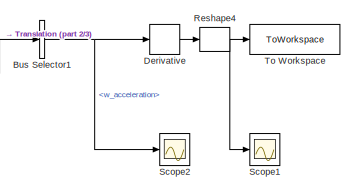
[diagram: root canvas - part 1/3, top right region]
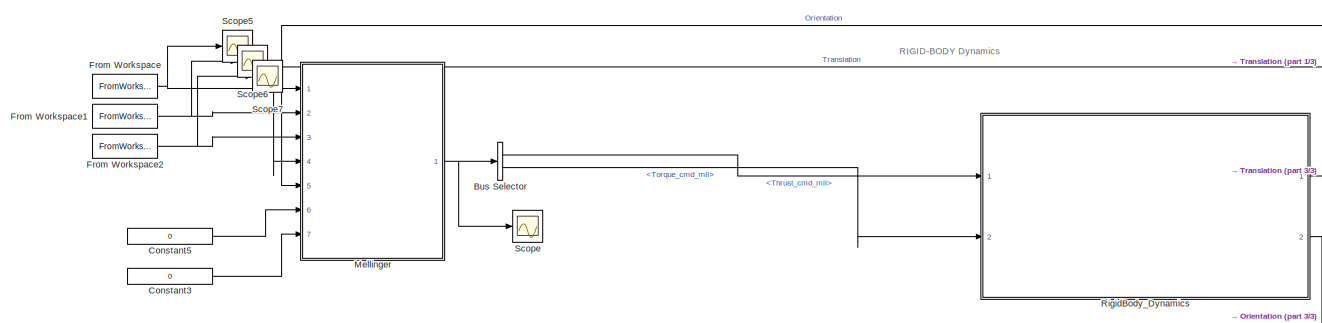
[diagram: root canvas - part 2/3, full width, middle band]
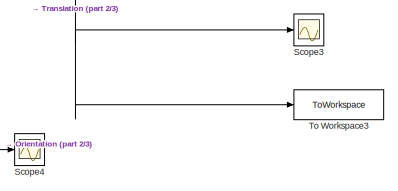
[diagram: root canvas - part 3/3, bottom right region]
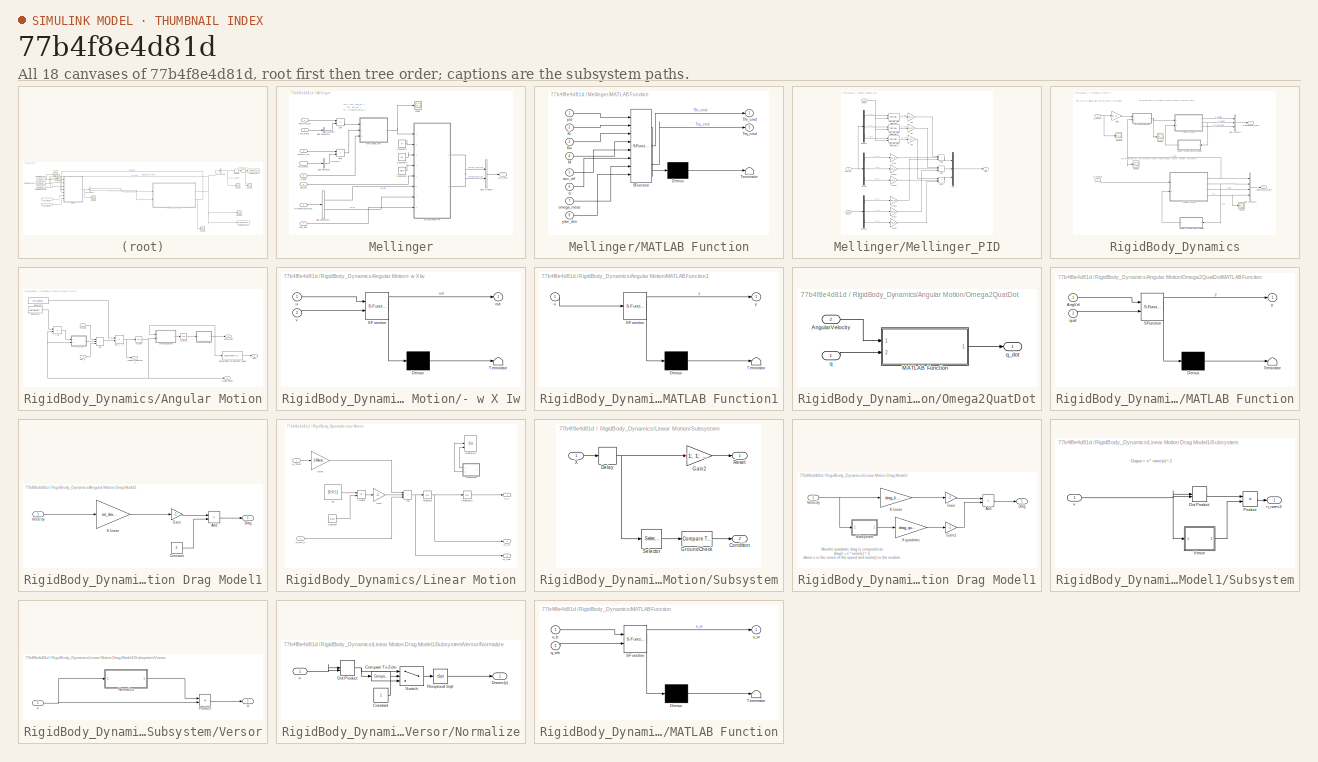
[diagram: thumbnail index - all 18 canvases of the model, root first then tree order]
MODEL slx_77b4f8e4d81d
KIND model
CONFIG AbsTol = auto
CONFIG EnableMultiTasking = off
CONFIG FixedStep = 0.001
CONFIG MaxStep = auto
CONFIG MinStep = auto
CONFIG RelTol = 1e-3
CONFIG SampleTimeConstraint = Unconstrained
CONFIG SolverName = FixedStepAuto
CONFIG StartTime = 0.0
CONFIG StopTime = 10.0
BLOCK [BusSelector] Bus Selector
  OutputSignals = Thrust_cmd_mll,Torque_cmd_mll
  Ports = [1, 2]
BLOCK [BusSelector] Bus Selector1
  OutputSignals = w_acceleration
  Ports = [1, 1]
BLOCK [Constant] Constant3
  Value = 0
BLOCK [Constant] Constant5
  Value = 0
BLOCK [Derivative] Derivative
BLOCK [FromWorkspace] From Workspace
  VariableName = polys
BLOCK [FromWorkspace] From Workspace1
  VariableName = polys_v
BLOCK [FromWorkspace] From Workspace2
  VariableName = polys_a
BLOCK [SubSystem] Mellinger
  Ports = [7, 1]
  RequestExecContextInheritance = off
  SystemSampleTime = Mellinger_dt
  TreatAsAtomicUnit = on
BLOCK [Outport] Mellinger/Act_Cmd
BLOCK [Sum] Mellinger/Add
  IconShape = rectangular
  Inputs = +-
  Ports = [2, 1]
BLOCK [Sum] Mellinger/Add1
  IconShape = rectangular
  Inputs = +-
  Ports = [2, 1]
BLOCK [BusCreator] Mellinger/Bus Creator
  DisplayOption = bar
  InheritFromInputs = on
  Inputs = 2
  Ports = [2, 1]
BLOCK [BusSelector] Mellinger/Bus Selector
  OutputSignals = w_velocity
  Ports = [1, 1]
BLOCK [BusSelector] Mellinger/Bus Selector1
  OutputSignals = w_position
  Ports = [1, 1]
BLOCK [BusSelector] Mellinger/Bus Selector2
  OutputSignals = q_wb,b_w
  Ports = [1, 2]
BLOCK [Constant] Mellinger/Constant2
  Value = Mass
BLOCK [Constant] Mellinger/Constant3
  Value = Kr
BLOCK [Constant] Mellinger/Constant4
  Value = Kw
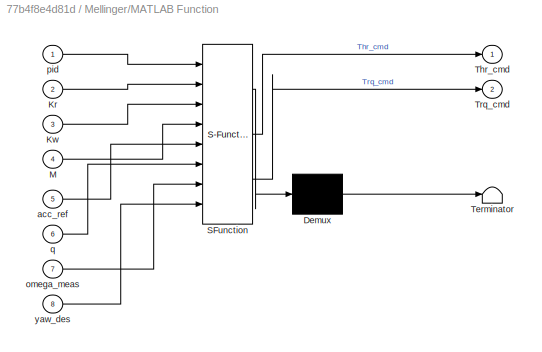
BLOCK [SubSystem] Mellinger/MATLAB Function
  ErrorFcn = Stateflow.Translate.translate
  PermitHierarchicalResolution = ExplicitOnly
  Ports = [8, 2]
  RequestExecContextInheritance = off
  SFBlockType = MATLAB Function
  SystemSampleTime = Mellinger_dt
  TreatAsAtomicUnit = on
BLOCK [Demux] Mellinger/MATLAB Function/ Demux 
  Outputs = 1
  Ports = [1, 1]
BLOCK [S-Function] Mellinger/MATLAB Function/ SFunction 
  EnableBusSupport = on
  FunctionName = sf_sfun
  PortCounts = [8 3]
  Ports = [8, 3]
  SFcnIsStateOwnerBlock = off
  SFunctionDeploymentMode = off
  Tag = Stateflow S-Function 1
BLOCK [Terminator] Mellinger/MATLAB Function/ Terminator 
BLOCK [Inport] Mellinger/MATLAB Function/Kr
  Port = 2
BLOCK [Inport] Mellinger/MATLAB Function/Kw
  Port = 3
BLOCK [Inport] Mellinger/MATLAB Function/M
  Port = 4
BLOCK [Outport] Mellinger/MATLAB Function/Thr_cmd
BLOCK [Outport] Mellinger/MATLAB Function/Trq_cmd
  Port = 2
BLOCK [Inport] Mellinger/MATLAB Function/acc_ref
  Port = 5
BLOCK [Inport] Mellinger/MATLAB Function/omega_meas
  Port = 7
BLOCK [Inport] Mellinger/MATLAB Function/pid
BLOCK [Inport] Mellinger/MATLAB Function/q
  Port = 6
BLOCK [Inport] Mellinger/MATLAB Function/yaw_des
  Port = 8
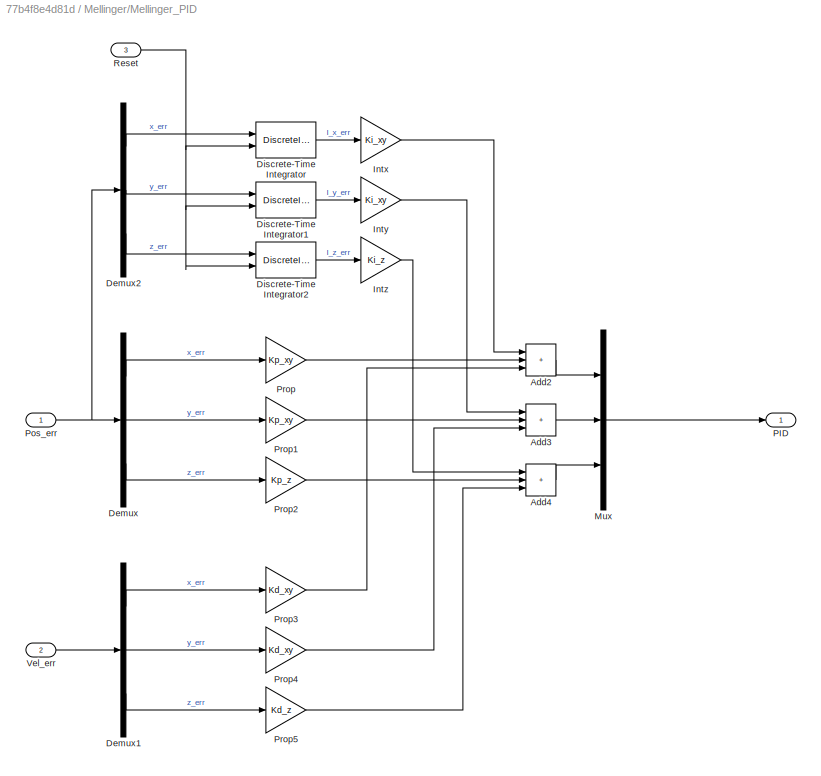
BLOCK [SubSystem] Mellinger/Mellinger_PID
  Ports = [3, 1]
  RequestExecContextInheritance = off
BLOCK [Sum] Mellinger/Mellinger_PID/Add2
  IconShape = rectangular
  Inputs = +++
  Ports = [3, 1]
BLOCK [Sum] Mellinger/Mellinger_PID/Add3
  IconShape = rectangular
  Inputs = +++
  Ports = [3, 1]
BLOCK [Sum] Mellinger/Mellinger_PID/Add4
  IconShape = rectangular
  Inputs = +++
  Ports = [3, 1]
BLOCK [Demux] Mellinger/Mellinger_PID/Demux
  Outputs = 3
  Ports = [1, 3]
BLOCK [Demux] Mellinger/Mellinger_PID/Demux1
  Outputs = 3
  Ports = [1, 3]
BLOCK [Demux] Mellinger/Mellinger_PID/Demux2
  Outputs = 3
  Ports = [1, 3]
BLOCK [DiscreteIntegrator] Mellinger/Mellinger_PID/Discrete-Time Integrator
  ExternalReset = rising
  ICPrevOutput = DiscIntNeverNeededParam
  ICPrevScaledInput = DiscIntNeverNeededParam
  InitialConditionSetting = Auto
  LimitOutput = on
  LowerSaturationLimit = -Irange_xy
  Ports = [2, 1]
  SampleTime = -1
  UpperSaturationLimit = Irange_xy
BLOCK [DiscreteIntegrator] Mellinger/Mellinger_PID/Discrete-Time Integrator1
  ExternalReset = rising
  ICPrevOutput = DiscIntNeverNeededParam
  ICPrevScaledInput = DiscIntNeverNeededParam
  InitialConditionSetting = Auto
  LimitOutput = on
  LowerSaturationLimit = -Irange_xy
  Ports = [2, 1]
  SampleTime = -1
  UpperSaturationLimit = Irange_xy
BLOCK [DiscreteIntegrator] Mellinger/Mellinger_PID/Discrete-Time Integrator2
  ExternalReset = rising
  ICPrevOutput = DiscIntNeverNeededParam
  ICPrevScaledInput = DiscIntNeverNeededParam
  InitialConditionSetting = Auto
  LimitOutput = on
  LowerSaturationLimit = -Irange_z
  Ports = [2, 1]
  SampleTime = -1
  UpperSaturationLimit = Irange_z
BLOCK [Gain] Mellinger/Mellinger_PID/Intx
  Gain = Ki_xy
  NameLocation = top
BLOCK [Gain] Mellinger/Mellinger_PID/Inty
  Gain = Ki_xy
  NameLocation = top
BLOCK [Gain] Mellinger/Mellinger_PID/Intz
  Gain = Ki_z
BLOCK [Mux] Mellinger/Mellinger_PID/Mux
  DisplayOption = bar
  Inputs = 3
  Ports = [3, 1]
BLOCK [Outport] Mellinger/Mellinger_PID/PID
BLOCK [Inport] Mellinger/Mellinger_PID/Pos_err
BLOCK [Gain] Mellinger/Mellinger_PID/Prop
  Gain = Kp_xy
  NameLocation = top
BLOCK [Gain] Mellinger/Mellinger_PID/Prop1
  Gain = Kp_xy
  NameLocation = top
BLOCK [Gain] Mellinger/Mellinger_PID/Prop2
  Gain = Kp_z
BLOCK [Gain] Mellinger/Mellinger_PID/Prop3
  Gain = Kd_xy
  NameLocation = top
BLOCK [Gain] Mellinger/Mellinger_PID/Prop4
  Gain = Kd_xy
  NameLocation = top
BLOCK [Gain] Mellinger/Mellinger_PID/Prop5
  Gain = Kd_z
BLOCK [Inport] Mellinger/Mellinger_PID/Reset
  Port = 3
BLOCK [Inport] Mellinger/Mellinger_PID/Vel_err
  Port = 2
BLOCK [Inport] Mellinger/Orientation_state
  Port = 5
BLOCK [Inport] Mellinger/Position_ref
BLOCK [Inport] Mellinger/Reset
  Port = 6
BLOCK [Scope] Mellinger/Scope
  Floating = off
  NumInputPorts = 1
  Ports = [1]
  ScopeSpecificationString = Simulink.scopes.TimeScopeBlockCfg('CurrentConfiguration', extmgr.ConfigurationSet(extmgr.Configuration('Core','General UI',true),extmgr.Configuration('Core','Source UI',true),extmgr.Configuration('Sources','WiredSimulink',true,'DataLoggingVariableName','ScopeData1'),extmgr.Configuration('Visuals','Time Domain',true,'SerializedDisplays',{struct('MinYLimReal','-0.000039','MaxYLimReal','0.000037','YL...<+1418ch>
BLOCK [Inport] Mellinger/Velocity_ref
  Port = 2
BLOCK [Inport] Mellinger/XVA_state
  Port = 4
BLOCK [InportShadow] Mellinger/XVA_state1
  Port = 4
BLOCK [Inport] Mellinger/acc_ref
  Port = 3
BLOCK [Inport] Mellinger/yaw_des
  Port = 7
BLOCK [Reshape] Reshape4
  Ports = [1, 1]
BLOCK [SubSystem] RigidBody_Dynamics
  Ports = [2, 2]
  RequestExecContextInheritance = off
BLOCK [SubSystem] RigidBody_Dynamics/Angular Motion
  Ports = [2, 4]
  RequestExecContextInheritance = off
BLOCK [SubSystem] RigidBody_Dynamics/Angular Motion Drag Model1
  NameLocation = top
  Ports = [1, 1]
  RequestExecContextInheritance = off
BLOCK [Sum] RigidBody_Dynamics/Angular Motion Drag Model1/Add
  IconShape = rectangular
  Ports = [2, 1]
BLOCK [Constant] RigidBody_Dynamics/Angular Motion Drag Model1/Constant
  Value = 0
BLOCK [Outport] RigidBody_Dynamics/Angular Motion Drag Model1/Drag
BLOCK [Gain] RigidBody_Dynamics/Angular Motion Drag Model1/Gain
  Gain = -1
BLOCK [Gain] RigidBody_Dynamics/Angular Motion Drag Model1/K linear
  Gain = rot_drag_linear
BLOCK [Inport] RigidBody_Dynamics/Angular Motion Drag Model1/Velocity
BLOCK [SubSystem] RigidBody_Dynamics/Angular Motion/- w X Iw
  ErrorFcn = Stateflow.Translate.translate
  PermitHierarchicalResolution = ExplicitOnly
  Ports = [2, 1]
  RequestExecContextInheritance = off
  SFBlockType = MATLAB Function
  TreatAsAtomicUnit = on
BLOCK [Demux] RigidBody_Dynamics/Angular Motion/- w X Iw/ Demux 
  Outputs = 1
  Ports = [1, 1]
BLOCK [S-Function] RigidBody_Dynamics/Angular Motion/- w X Iw/ SFunction 
  EnableBusSupport = on
  FunctionName = sf_sfun
  PortCounts = [2 2]
  Ports = [2, 2]
  SFcnIsStateOwnerBlock = off
  SFunctionDeploymentMode = off
  Tag = Stateflow S-Function 3
BLOCK [Terminator] RigidBody_Dynamics/Angular Motion/- w X Iw/ Terminator 
BLOCK [Outport] RigidBody_Dynamics/Angular Motion/- w X Iw/out
BLOCK [Inport] RigidBody_Dynamics/Angular Motion/- w X Iw/u
BLOCK [Inport] RigidBody_Dynamics/Angular Motion/- w X Iw/v
  Port = 2
BLOCK [Integrator] RigidBody_Dynamics/Angular Motion/Acc2Vel
  InitialCondition = InitialAngularVelocity
  Ports = [1, 1]
BLOCK [Sum] RigidBody_Dynamics/Angular Motion/Add
  IconShape = rectangular
  Inputs = +++
  Ports = [3, 1]
BLOCK [Outport] RigidBody_Dynamics/Angular Motion/AngularAcceleration
  Port = 3
BLOCK [Outport] RigidBody_Dynamics/Angular Motion/AngularVelocity
  Port = 2
BLOCK [Constant] RigidBody_Dynamics/Angular Motion/Constant1
  Value = InertiaMatrix
BLOCK [Constant] RigidBody_Dynamics/Angular Motion/Constant2
  Value = Inv_InertiaMatrix
BLOCK [Inport] RigidBody_Dynamics/Angular Motion/Ext_T
  Port = 2
BLOCK [Product] RigidBody_Dynamics/Angular Motion/I w
  Multiplication = Matrix(*)
  Ports = [2, 1]
BLOCK [SubSystem] RigidBody_Dynamics/Angular Motion/MATLAB Function1
  ErrorFcn = Stateflow.Translate.translate
  PermitHierarchicalResolution = ExplicitOnly
  Ports = [1, 1]
  RequestExecContextInheritance = off
  SFBlockType = MATLAB Function
  TreatAsAtomicUnit = on
BLOCK [Demux] RigidBody_Dynamics/Angular Motion/MATLAB Function1/ Demux 
  Outputs = 1
  Ports = [1, 1]
BLOCK [S-Function] RigidBody_Dynamics/Angular Motion/MATLAB Function1/ SFunction 
  EnableBusSupport = on
  FunctionName = sf_sfun
  PortCounts = [1 2]
  Ports = [1, 2]
  SFcnIsStateOwnerBlock = off
  SFunctionDeploymentMode = off
  Tag = Stateflow S-Function 9
BLOCK [Terminator] RigidBody_Dynamics/Angular Motion/MATLAB Function1/ Terminator 
BLOCK [Inport] RigidBody_Dynamics/Angular Motion/MATLAB Function1/u
BLOCK [Outport] RigidBody_Dynamics/Angular Motion/MATLAB Function1/y
BLOCK [SubSystem] RigidBody_Dynamics/Angular Motion/Omega2QuatDot
  Ports = [2, 1]
  RequestExecContextInheritance = off
BLOCK [Inport] RigidBody_Dynamics/Angular Motion/Omega2QuatDot/AngularVelocity
  Port = 2
BLOCK [SubSystem] RigidBody_Dynamics/Angular Motion/Omega2QuatDot/MATLAB Function
  ErrorFcn = Stateflow.Translate.translate
  PermitHierarchicalResolution = ExplicitOnly
  Ports = [2, 1]
  RequestExecContextInheritance = off
  SFBlockType = MATLAB Function
  TreatAsAtomicUnit = on
BLOCK [Demux] RigidBody_Dynamics/Angular Motion/Omega2QuatDot/MATLAB Function/ Demux 
  Outputs = 1
  Ports = [1, 1]
BLOCK [S-Function] RigidBody_Dynamics/Angular Motion/Omega2QuatDot/MATLAB Function/ SFunction 
  EnableBusSupport = on
  FunctionName = sf_sfun
  PortCounts = [2 2]
  Ports = [2, 2]
  SFcnIsStateOwnerBlock = off
  SFunctionDeploymentMode = off
  Tag = Stateflow S-Function 5
BLOCK [Terminator] RigidBody_Dynamics/Angular Motion/Omega2QuatDot/MATLAB Function/ Terminator 
BLOCK [Inport] RigidBody_Dynamics/Angular Motion/Omega2QuatDot/MATLAB Function/AngVel
BLOCK [Inport] RigidBody_Dynamics/Angular Motion/Omega2QuatDot/MATLAB Function/quat
  Port = 2
BLOCK [Outport] RigidBody_Dynamics/Angular Motion/Omega2QuatDot/MATLAB Function/y
BLOCK [Inport] RigidBody_Dynamics/Angular Motion/Omega2QuatDot/q
BLOCK [Outport] RigidBody_Dynamics/Angular Motion/Omega2QuatDot/q_dot
BLOCK [Outport] RigidBody_Dynamics/Angular Motion/Quaternion
BLOCK [Reference] RigidBody_Dynamics/Angular Motion/Quaternions to Rotation Angles  REF=sharedtransform/Quaternions to Rotation Angles
  AttributesFormatString = Rotation Order: %<rotationOrder>
  Ports = [1, 1]
  SourceBlock = sharedtransform/Quaternions to Rotation Angles
  SourceProductBaseCode = AE,PW,MT,UV,VE,VP
  SourceType = Quat2Ang
BLOCK [Outport] RigidBody_Dynamics/Angular Motion/RPY
  Port = 4
BLOCK [Inport] RigidBody_Dynamics/Angular Motion/Torques
BLOCK [Product] RigidBody_Dynamics/Angular Motion/inv(I) * t
  Multiplication = Matrix(*)
  Ports = [2, 1]
BLOCK [Integrator] RigidBody_Dynamics/Angular Motion/q_dot2q
  InitialCondition = q0
  Ports = [1, 1]
BLOCK [BusCreator] RigidBody_Dynamics/Bus Creator4
  DisplayOption = bar
  InheritFromInputs = on
  Inputs = 3
  Ports = [3, 1]
BLOCK [BusCreator] RigidBody_Dynamics/Bus Creator5
  DisplayOption = bar
  InheritFromInputs = on
  Inputs = 4
  Ports = [4, 1]
BLOCK [Gain] RigidBody_Dynamics/Gain
  Gain = [0; 0; 1]
BLOCK [SubSystem] RigidBody_Dynamics/Linear Motion
  Ports = [2, 3]
  RequestExecContextInheritance = off
BLOCK [SubSystem] RigidBody_Dynamics/Linear Motion Drag Model1
  NameLocation = top
  Ports = [1, 1]
  RequestExecContextInheritance = off
BLOCK [Sum] RigidBody_Dynamics/Linear Motion Drag Model1/Add
  IconShape = rectangular
  Ports = [2, 1]
BLOCK [Outport] RigidBody_Dynamics/Linear Motion Drag Model1/Drag
BLOCK [Gain] RigidBody_Dynamics/Linear Motion Drag Model1/Gain
  Gain = -1
BLOCK [Gain] RigidBody_Dynamics/Linear Motion Drag Model1/Gain1
  Gain = -1
BLOCK [Gain] RigidBody_Dynamics/Linear Motion Drag Model1/K linear
  Gain = drag_linear
BLOCK [Gain] RigidBody_Dynamics/Linear Motion Drag Model1/K quadratic
  Gain = drag_quadratic
BLOCK [SubSystem] RigidBody_Dynamics/Linear Motion Drag Model1/Subsystem
  Ports = [1, 1]
  RequestExecContextInheritance = off
BLOCK [DotProduct] RigidBody_Dynamics/Linear Motion Drag Model1/Subsystem/Dot Product
  OutDataTypeStr = Inherit: Inherit via internal rule
BLOCK [Product] RigidBody_Dynamics/Linear Motion Drag Model1/Subsystem/Product
  Ports = [2, 1]
BLOCK [SubSystem] RigidBody_Dynamics/Linear Motion Drag Model1/Subsystem/Versor
  Ports = [1, 1]
  RequestExecContextInheritance = off
BLOCK [SubSystem] RigidBody_Dynamics/Linear Motion Drag Model1/Subsystem/Versor/Normalize
  Ports = [1, 1]
  RequestExecContextInheritance = off
BLOCK [Outport] RigidBody_Dynamics/Linear Motion Drag Model1/Subsystem/Versor/Normalize/1//norm(v)
BLOCK [Reference] RigidBody_Dynamics/Linear Motion Drag Model1/Subsystem/Versor/Normalize/Compare To Zero  REF=simulink/Logic and Bit
Operations/Compare
To Zero
  Ports = [1, 1]
  SourceBlock = simulink/Logic and Bit\nOperations/Compare\nTo Zero
  SourceProductBaseCode = SL
  SourceType = Compare To Zero
BLOCK [Constant] RigidBody_Dynamics/Linear Motion Drag Model1/Subsystem/Versor/Normalize/Constant
BLOCK [DotProduct] RigidBody_Dynamics/Linear Motion Drag Model1/Subsystem/Versor/Normalize/Dot Product
  OutDataTypeStr = Inherit: Inherit via internal rule
BLOCK [Sqrt] RigidBody_Dynamics/Linear Motion Drag Model1/Subsystem/Versor/Normalize/Reciprocal Sqrt
  Operator = rSqrt
BLOCK [Switch] RigidBody_Dynamics/Linear Motion Drag Model1/Subsystem/Versor/Normalize/Switch
  Criteria = u2 > Threshold
  InputSameDT = off
  SaturateOnIntegerOverflow = off
BLOCK [Inport] RigidBody_Dynamics/Linear Motion Drag Model1/Subsystem/Versor/Normalize/v
BLOCK [Product] RigidBody_Dynamics/Linear Motion Drag Model1/Subsystem/Versor/Product
  Ports = [2, 1]
BLOCK [Outport] RigidBody_Dynamics/Linear Motion Drag Model1/Subsystem/Versor/n
BLOCK [Inport] RigidBody_Dynamics/Linear Motion Drag Model1/Subsystem/Versor/v
BLOCK [Outport] RigidBody_Dynamics/Linear Motion Drag Model1/Subsystem/n_norm2
BLOCK [Inport] RigidBody_Dynamics/Linear Motion Drag Model1/Subsystem/v
BLOCK [Inport] RigidBody_Dynamics/Linear Motion Drag Model1/Velocity
BLOCK [Sum] RigidBody_Dynamics/Linear Motion/Add
  IconShape = rectangular
  Inputs = +++
  Ports = [3, 1]
BLOCK [Constant] RigidBody_Dynamics/Linear Motion/Constant
  Value = G_acc
BLOCK [Gain] RigidBody_Dynamics/Linear Motion/Gain
  Gain = -1
BLOCK [Gain] RigidBody_Dynamics/Linear Motion/Gain1
  Gain = 1/Mass
BLOCK [Integrator] RigidBody_Dynamics/Linear Motion/Integrator
  ContinuousStateAttributes = 'velocity'
  InitialCondition = InitialVelocity
  Ports = [1, 1]
BLOCK [Integrator] RigidBody_Dynamics/Linear Motion/Integrator1
  Commented = on
  ContinuousStateAttributes = 'position'
  ExternalReset = level
  InitialCondition = InitialPosition
  InitialConditionSource = external
  Ports = [3, 1]
BLOCK [Integrator] RigidBody_Dynamics/Linear Motion/Integrator2
  ContinuousStateAttributes = 'position'
  InitialCondition = InitialPosition
  Ports = [1, 1]
BLOCK [Product] RigidBody_Dynamics/Linear Motion/Product
  Ports = [2, 1]
BLOCK [SubSystem] RigidBody_Dynamics/Linear Motion/Subsystem
  Commented = on
  NameLocation = top
  Ports = [1, 2]
  RequestExecContextInheritance = off
BLOCK [Outport] RigidBody_Dynamics/Linear Motion/Subsystem/Condition
  Port = 2
BLOCK [Delay] RigidBody_Dynamics/Linear Motion/Subsystem/Delay
  DelayLength = 1
  InitialCondition = 0
  InputPortMap = u0
  Ports = [1, 1]
BLOCK [Gain] RigidBody_Dynamics/Linear Motion/Subsystem/Gain2
  Gain = [1; 1; 0]
BLOCK [Reference] RigidBody_Dynamics/Linear Motion/Subsystem/GroundCheck  REF=simulink/Logic and Bit
Operations/Compare
To Constant
  Ports = [1, 1]
  SourceBlock = simulink/Logic and Bit\nOperations/Compare\nTo Constant
  SourceProductBaseCode = SL
  SourceType = Compare To Constant
BLOCK [Outport] RigidBody_Dynamics/Linear Motion/Subsystem/Reset
BLOCK [Selector] RigidBody_Dynamics/Linear Motion/Subsystem/Selector
  IndexOptions = Index vector (dialog)
  Indices = [3]
  InputPortWidth = 3
  OutputSizes = 1
  Ports = [1, 1]
BLOCK [Inport] RigidBody_Dynamics/Linear Motion/Subsystem/X
BLOCK [Constant] RigidBody_Dynamics/Linear Motion/Zw
  Value = [0;0;1]
BLOCK [Inport] RigidBody_Dynamics/Linear Motion/w_Ext_F
  Port = 2
BLOCK [Inport] RigidBody_Dynamics/Linear Motion/w_Thrust
BLOCK [Outport] RigidBody_Dynamics/Linear Motion/w_X
BLOCK [Outport] RigidBody_Dynamics/Linear Motion/w_Xd
  Port = 2
BLOCK [Outport] RigidBody_Dynamics/Linear Motion/w_Xdd
  Port = 3
BLOCK [SubSystem] RigidBody_Dynamics/MATLAB Function
  ErrorFcn = Stateflow.Translate.translate
  PermitHierarchicalResolution = ExplicitOnly
  Ports = [2, 1]
  RequestExecContextInheritance = off
  SFBlockType = MATLAB Function
  TreatAsAtomicUnit = on
BLOCK [Demux] RigidBody_Dynamics/MATLAB Function/ Demux 
  Outputs = 1
  Ports = [1, 1]
BLOCK [S-Function] RigidBody_Dynamics/MATLAB Function/ SFunction 
  EnableBusSupport = on
  FunctionName = sf_sfun
  PortCounts = [2 2]
  Ports = [2, 2]
  SFcnIsStateOwnerBlock = off
  SFunctionDeploymentMode = off
  Tag = Stateflow S-Function 10
BLOCK [Terminator] RigidBody_Dynamics/MATLAB Function/ Terminator 
BLOCK [Inport] RigidBody_Dynamics/MATLAB Function/q_wb
  Port = 2
BLOCK [Inport] RigidBody_Dynamics/MATLAB Function/u_b
BLOCK [Outport] RigidBody_Dynamics/MATLAB Function/u_w
BLOCK [Outport] RigidBody_Dynamics/Orientation_State
  Port = 2
BLOCK [Scope] RigidBody_Dynamics/Scope
  Floating = off
  NumInputPorts = 1
  Ports = [1]
  ScopeSpecificationString = Simulink.scopes.TimeScopeBlockCfg('CurrentConfiguration', extmgr.ConfigurationSet(extmgr.Configuration('Core','General UI',true),extmgr.Configuration('Core','Source UI',true),extmgr.Configuration('Sources','WiredSimulink',true,'DataLoggingVariableName','ScopeData4'),extmgr.Configuration('Visuals','Time Domain',true,'SerializedDisplays',{struct('MinYLimReal','-0.02945','MaxYLimReal','0.02945','YLab...<+1742ch>
BLOCK [Scope] RigidBody_Dynamics/Scope1
  Floating = off
  NumInputPorts = 1
  Ports = [1]
  ScopeSpecificationString = Simulink.scopes.TimeScopeBlockCfg('CurrentConfiguration', extmgr.ConfigurationSet(extmgr.Configuration('Core','General UI',true),extmgr.Configuration('Core','Source UI',true),extmgr.Configuration('Sources','WiredSimulink',true,'DataLoggingVariableName','ScopeData6'),extmgr.Configuration('Visuals','Time Domain',true,'SerializedDisplays',{struct('MinYLimReal','-0.04324','MaxYLimReal','0.38919','YLab...<+1763ch>
BLOCK [Scope] RigidBody_Dynamics/Scope2
  Floating = off
  NumInputPorts = 1
  Ports = [1]
  ScopeSpecificationString = Simulink.scopes.TimeScopeBlockCfg('CurrentConfiguration', extmgr.ConfigurationSet(extmgr.Configuration('Core','General UI',true),extmgr.Configuration('Core','Source UI',true),extmgr.Configuration('Sources','WiredSimulink',true,'DataLoggingVariableName','ScopeData7'),extmgr.Configuration('Visuals','Time Domain',true,'SerializedDisplays',{struct('MinYLimReal','-0.16948','MaxYLimReal','1.12853','YLab...<+1768ch>
BLOCK [Scope] RigidBody_Dynamics/Scope3
  Floating = off
  NumInputPorts = 1
  Ports = [1]
  ScopeSpecificationString = Simulink.scopes.TimeScopeBlockCfg('CurrentConfiguration', extmgr.ConfigurationSet(extmgr.Configuration('Core','General UI',true),extmgr.Configuration('Core','Source UI',true),extmgr.Configuration('Sources','WiredSimulink',true,'DataLoggingVariableName','ScopeData8'),extmgr.Configuration('Visuals','Time Domain',true,'SerializedDisplays',{struct('MinYLimReal','0.29587','MaxYLimReal','0.35151','YLabe...<+1683ch>
BLOCK [Outport] RigidBody_Dynamics/Translational_State
BLOCK [Inport] RigidBody_Dynamics/b_Thrust
BLOCK [Inport] RigidBody_Dynamics/b_Torques
  Port = 2
BLOCK [Scope] Scope
  Floating = off
  NumInputPorts = 1
  Ports = [1]
  ScopeSpecificationString = Simulink.scopes.TimeScopeBlockCfg('CurrentConfiguration', extmgr.ConfigurationSet(extmgr.Configuration('Core','General UI',true),extmgr.Configuration('Core','Source UI',true),extmgr.Configuration('Sources','WiredSimulink',true,'DataLoggingVariableName','ScopeData2'),extmgr.Configuration('Visuals','Time Domain',true,'SerializedDisplays',{struct('MinYLimReal','-0.00024','MaxYLimReal','0.00011','YLab...<+1851ch>
BLOCK [Scope] Scope1
  Floating = off
  NumInputPorts = 1
  Ports = [1]
  ScopeSpecificationString = Simulink.scopes.TimeScopeBlockCfg('CurrentConfiguration', extmgr.ConfigurationSet(extmgr.Configuration('Core','General UI',true),extmgr.Configuration('Core','Source UI',true),extmgr.Configuration('Sources','WiredSimulink',true,'DataLoggingVariableName','ScopeData3'),extmgr.Configuration('Visuals','Time Domain',true,'SerializedDisplays',{struct('MinYLimReal','-0.92108','MaxYLimReal','0.78391','YLab...<+1468ch>
BLOCK [Scope] Scope2
  Floating = off
  NumInputPorts = 1
  Ports = [1]
  ScopeSpecificationString = Simulink.scopes.TimeScopeBlockCfg('CurrentConfiguration', extmgr.ConfigurationSet(extmgr.Configuration('Core','General UI',true),extmgr.Configuration('Core','Source UI',true),extmgr.Configuration('Sources','WiredSimulink',true,'DataLoggingVariableName','ScopeData4'),extmgr.Configuration('Visuals','Time Domain',true,'SerializedDisplays',{struct('MinYLimReal','-0.289','MaxYLimReal','0.28892','YLabel...<+1484ch>
BLOCK [Scope] Scope3
  Floating = off
  NumInputPorts = 1
  Ports = [1]
  ScopeSpecificationString = Simulink.scopes.TimeScopeBlockCfg('CurrentConfiguration', extmgr.ConfigurationSet(extmgr.Configuration('Core','General UI',true),extmgr.Configuration('Core','Source UI',true),extmgr.Configuration('Sources','WiredSimulink',true,'DataLoggingVariableName','ScopeData3'),extmgr.Configuration('Visuals','Time Domain',true,'SerializedDisplays',{struct('MinYLimReal','-53.53413','MaxYLimReal','13.05617','YL...<+1913ch>
BLOCK [Scope] Scope4
  Floating = off
  NumInputPorts = 1
  Ports = [1]
  ScopeSpecificationString = Simulink.scopes.TimeScopeBlockCfg('CurrentConfiguration', extmgr.ConfigurationSet(extmgr.Configuration('Core','General UI',true),extmgr.Configuration('Core','Source UI',true),extmgr.Configuration('Sources','WiredSimulink',true,'DataLoggingVariableName','ScopeData4'),extmgr.Configuration('Visuals','Time Domain',true,'SerializedDisplays',{struct('MinYLimReal','-15.31546','MaxYLimReal','8.86464','YLa...<+1952ch>
BLOCK [Scope] Scope5
  Floating = off
  NumInputPorts = 1
  Ports = [1]
  ScopeSpecificationString = Simulink.scopes.TimeScopeBlockCfg('CurrentConfiguration', extmgr.ConfigurationSet(extmgr.Configuration('Core','General UI',true),extmgr.Configuration('Core','Source UI',true),extmgr.Configuration('Sources','WiredSimulink',true,'DataLoggingVariableName','ScopeData1'),extmgr.Configuration('Visuals','Time Domain',true,'SerializedDisplays',{struct('MinYLimReal','-0.125','MaxYLimReal','1.125','YLabelRe...<+1401ch>
BLOCK [Scope] Scope6
  Floating = off
  NumInputPorts = 1
  Ports = [1]
  ScopeSpecificationString = Simulink.scopes.TimeScopeBlockCfg('CurrentConfiguration', extmgr.ConfigurationSet(extmgr.Configuration('Core','General UI',true),extmgr.Configuration('Core','Source UI',true),extmgr.Configuration('Sources','WiredSimulink',true,'DataLoggingVariableName','ScopeData2'),extmgr.Configuration('Visuals','Time Domain',true,'SerializedDisplays',{struct('MinYLimReal','-0.46875','MaxYLimReal','0.46875','YLab...<+1416ch>
BLOCK [Scope] Scope7
  Floating = off
  NumInputPorts = 1
  Ports = [1]
  ScopeSpecificationString = Simulink.scopes.TimeScopeBlockCfg('CurrentConfiguration', extmgr.ConfigurationSet(extmgr.Configuration('Core','General UI',true),extmgr.Configuration('Core','Source UI',true),extmgr.Configuration('Sources','WiredSimulink',true,'DataLoggingVariableName','ScopeData3'),extmgr.Configuration('Visuals','Time Domain',true,'SerializedDisplays',{struct('MinYLimReal','-0.28868','MaxYLimReal','0.28868','YLab...<+1416ch>
BLOCK [ToWorkspace] To Workspace
  FixptAsFi = on
  MaxDataPoints = inf
  Ports = [1]
  SampleTime = -1
  SaveFormat = Structure With Time
  VariableName = v
BLOCK [ToWorkspace] To Workspace3
  FixptAsFi = on
  MaxDataPoints = inf
  Ports = [1]
  SampleTime = -1
  SaveFormat = Structure With Time
  VariableName = z
ANNOTATION (root): RIGID-BODY Dynamics
ANNOTATION Mellinger: PID = Kp * Pos_err + Kd * Vel_err + Ki * Integral(Pos_err)
ANNOTATION RigidBody_Dynamics: The integration of the linear motion is done in Inertial frame
ANNOTATION RigidBody_Dynamics: The integration of the rotative motion is done in body frame. Anyway, the output quaternion is the one that maps local quantities into global.
ANNOTATION RigidBody_Dynamics: The thurst is alligned with the Zb axis of the vehicle
ANNOTATION RigidBody_Dynamics/Linear Motion Drag Model1: Now the quadratic drag is computed as drag2 = n * norm(v) ^ 2, where n is the versor of the speed and norm(v) is the module.
ANNOTATION RigidBody_Dynamics/Linear Motion Drag Model1/Subsystem: Output = n * norm(v) ^ 2
NET Bus Selector1:1 -> Derivative:1, Scope2:1
LINE Bus Selector:1 -> RigidBody_Dynamics:1
LINE Bus Selector:2 -> RigidBody_Dynamics:2
LINE Constant3:1 -> Mellinger:7
LINE Constant5:1 -> Mellinger:6
LINE Derivative:1 -> Reshape4:1
NET From Workspace1:1 -> Mellinger:2, Scope6:1
NET From Workspace2:1 -> Mellinger:3, Scope7:1
NET From Workspace:1 -> Mellinger:1, Scope5:1
LINE Mellinger/Add1:1 -> Mellinger/Mellinger_PID:2
LINE Mellinger/Add:1 -> Mellinger/Mellinger_PID:1
LINE Mellinger/Bus Creator:1 -> Mellinger/Act_Cmd:1
LINE Mellinger/Bus Selector1:1 -> Mellinger/Add:2
LINE Mellinger/Bus Selector2:1 -> Mellinger/MATLAB Function:6
LINE Mellinger/Bus Selector2:2 -> Mellinger/MATLAB Function:7
LINE Mellinger/Bus Selector:1 -> Mellinger/Add1:2
LINE Mellinger/Constant2:1 -> Mellinger/MATLAB Function:4
LINE Mellinger/Constant3:1 -> Mellinger/MATLAB Function:2
LINE Mellinger/Constant4:1 -> Mellinger/MATLAB Function:3
LINE Mellinger/MATLAB Function:1 -> Mellinger/Bus Creator:1
LINE Mellinger/MATLAB Function:2 -> Mellinger/Bus Creator:2
LINE Mellinger/Mellinger_PID/Add2:1 -> Mellinger/Mellinger_PID/Mux:1
LINE Mellinger/Mellinger_PID/Add3:1 -> Mellinger/Mellinger_PID/Mux:2
LINE Mellinger/Mellinger_PID/Add4:1 -> Mellinger/Mellinger_PID/Mux:3
LINE Mellinger/Mellinger_PID/Demux1:1 -> Mellinger/Mellinger_PID/Prop3:1
LINE Mellinger/Mellinger_PID/Demux1:2 -> Mellinger/Mellinger_PID/Prop4:1
LINE Mellinger/Mellinger_PID/Demux1:3 -> Mellinger/Mellinger_PID/Prop5:1
LINE Mellinger/Mellinger_PID/Demux2:1 -> Mellinger/Mellinger_PID/Discrete-Time Integrator:1
LINE Mellinger/Mellinger_PID/Demux2:2 -> Mellinger/Mellinger_PID/Discrete-Time Integrator1:1
LINE Mellinger/Mellinger_PID/Demux2:3 -> Mellinger/Mellinger_PID/Discrete-Time Integrator2:1
LINE Mellinger/Mellinger_PID/Demux:1 -> Mellinger/Mellinger_PID/Prop:1
LINE Mellinger/Mellinger_PID/Demux:2 -> Mellinger/Mellinger_PID/Prop1:1
LINE Mellinger/Mellinger_PID/Demux:3 -> Mellinger/Mellinger_PID/Prop2:1
LINE Mellinger/Mellinger_PID/Discrete-Time Integrator1:1 -> Mellinger/Mellinger_PID/Inty:1
LINE Mellinger/Mellinger_PID/Discrete-Time Integrator2:1 -> Mellinger/Mellinger_PID/Intz:1
LINE Mellinger/Mellinger_PID/Discrete-Time Integrator:1 -> Mellinger/Mellinger_PID/Intx:1
LINE Mellinger/Mellinger_PID/Intx:1 -> Mellinger/Mellinger_PID/Add2:1
LINE Mellinger/Mellinger_PID/Inty:1 -> Mellinger/Mellinger_PID/Add3:1
LINE Mellinger/Mellinger_PID/Intz:1 -> Mellinger/Mellinger_PID/Add4:1
LINE Mellinger/Mellinger_PID/Mux:1 -> Mellinger/Mellinger_PID/PID:1
NET Mellinger/Mellinger_PID/Pos_err:1 -> Mellinger/Mellinger_PID/Demux2:1, Mellinger/Mellinger_PID/Demux:1
LINE Mellinger/Mellinger_PID/Prop1:1 -> Mellinger/Mellinger_PID/Add3:2
LINE Mellinger/Mellinger_PID/Prop2:1 -> Mellinger/Mellinger_PID/Add4:2
LINE Mellinger/Mellinger_PID/Prop3:1 -> Mellinger/Mellinger_PID/Add2:3
LINE Mellinger/Mellinger_PID/Prop4:1 -> Mellinger/Mellinger_PID/Add3:3
LINE Mellinger/Mellinger_PID/Prop5:1 -> Mellinger/Mellinger_PID/Add4:3
LINE Mellinger/Mellinger_PID/Prop:1 -> Mellinger/Mellinger_PID/Add2:2
NET Mellinger/Mellinger_PID/Reset:1 -> Mellinger/Mellinger_PID/Discrete-Time Integrator1:2, Mellinger/Mellinger_PID/Discrete-Time Integrator2:2, Mellinger/Mellinger_PID/Discrete-Time Integrator:2
LINE Mellinger/Mellinger_PID/Vel_err:1 -> Mellinger/Mellinger_PID/Demux1:1
NET Mellinger/Mellinger_PID:1 -> Mellinger/MATLAB Function:1, Mellinger/Scope:1
LINE Mellinger/Orientation_state:1 -> Mellinger/Bus Selector2:1
LINE Mellinger/Position_ref:1 -> Mellinger/Add:1
LINE Mellinger/Reset:1 -> Mellinger/Mellinger_PID:3
LINE Mellinger/Velocity_ref:1 -> Mellinger/Add1:1
LINE Mellinger/XVA_state1:1 -> Mellinger/Bus Selector:1
LINE Mellinger/XVA_state:1 -> Mellinger/Bus Selector1:1
LINE Mellinger/acc_ref:1 -> Mellinger/MATLAB Function:5
LINE Mellinger/yaw_des:1 -> Mellinger/MATLAB Function:8
NET Mellinger:1 -> Bus Selector:1, Scope:1
NET Reshape4:1 -> Scope1:1, To Workspace:1
LINE RigidBody_Dynamics/Angular Motion Drag Model1/Add:1 -> RigidBody_Dynamics/Angular Motion Drag Model1/Drag:1
LINE RigidBody_Dynamics/Angular Motion Drag Model1/Constant:1 -> RigidBody_Dynamics/Angular Motion Drag Model1/Add:2
LINE RigidBody_Dynamics/Angular Motion Drag Model1/Gain:1 -> RigidBody_Dynamics/Angular Motion Drag Model1/Add:1
LINE RigidBody_Dynamics/Angular Motion Drag Model1/K linear:1 -> RigidBody_Dynamics/Angular Motion Drag Model1/Gain:1
LINE RigidBody_Dynamics/Angular Motion Drag Model1/Velocity:1 -> RigidBody_Dynamics/Angular Motion Drag Model1/K linear:1
LINE RigidBody_Dynamics/Angular Motion Drag Model1:1 -> RigidBody_Dynamics/Angular Motion:2
LINE RigidBody_Dynamics/Angular Motion/- w X Iw:1 -> RigidBody_Dynamics/Angular Motion/Add:2
NET RigidBody_Dynamics/Angular Motion/Acc2Vel:1 -> RigidBody_Dynamics/Angular Motion/- w X Iw:2, RigidBody_Dynamics/Angular Motion/AngularVelocity:1, RigidBody_Dynamics/Angular Motion/I w:2, RigidBody_Dynamics/Angular Motion/Omega2QuatDot:2
LINE RigidBody_Dynamics/Angular Motion/Add:1 -> RigidBody_Dynamics/Angular Motion/inv(I) * t:2
LINE RigidBody_Dynamics/Angular Motion/Constant1:1 -> RigidBody_Dynamics/Angular Motion/I w:1
LINE RigidBody_Dynamics/Angular Motion/Constant2:1 -> RigidBody_Dynamics/Angular Motion/inv(I) * t:1
LINE RigidBody_Dynamics/Angular Motion/Ext_T:1 -> RigidBody_Dynamics/Angular Motion/Add:3
LINE RigidBody_Dynamics/Angular Motion/I w:1 -> RigidBody_Dynamics/Angular Motion/- w X Iw:1
NET RigidBody_Dynamics/Angular Motion/MATLAB Function1:1 -> RigidBody_Dynamics/Angular Motion/Omega2QuatDot:1, RigidBody_Dynamics/Angular Motion/Quaternion:1, RigidBody_Dynamics/Angular Motion/Quaternions to Rotation Angles:1
LINE RigidBody_Dynamics/Angular Motion/Omega2QuatDot/AngularVelocity:1 -> RigidBody_Dynamics/Angular Motion/Omega2QuatDot/MATLAB Function:1
LINE RigidBody_Dynamics/Angular Motion/Omega2QuatDot/MATLAB Function:1 -> RigidBody_Dynamics/Angular Motion/Omega2QuatDot/q_dot:1
LINE RigidBody_Dynamics/Angular Motion/Omega2QuatDot/q:1 -> RigidBody_Dynamics/Angular Motion/Omega2QuatDot/MATLAB Function:2
LINE RigidBody_Dynamics/Angular Motion/Omega2QuatDot:1 -> RigidBody_Dynamics/Angular Motion/q_dot2q:1
LINE RigidBody_Dynamics/Angular Motion/Quaternions to Rotation Angles:1 -> RigidBody_Dynamics/Angular Motion/RPY:1
LINE RigidBody_Dynamics/Angular Motion/Torques:1 -> RigidBody_Dynamics/Angular Motion/Add:1
NET RigidBody_Dynamics/Angular Motion/inv(I) * t:1 -> RigidBody_Dynamics/Angular Motion/Acc2Vel:1, RigidBody_Dynamics/Angular Motion/AngularAcceleration:1
LINE RigidBody_Dynamics/Angular Motion/q_dot2q:1 -> RigidBody_Dynamics/Angular Motion/MATLAB Function1:1
NET RigidBody_Dynamics/Angular Motion:1 -> RigidBody_Dynamics/Bus Creator5:1, RigidBody_Dynamics/MATLAB Function:2, RigidBody_Dynamics/Scope2:1
NET RigidBody_Dynamics/Angular Motion:2 -> RigidBody_Dynamics/Angular Motion Drag Model1:1, RigidBody_Dynamics/Bus Creator5:2
LINE RigidBody_Dynamics/Angular Motion:3 -> RigidBody_Dynamics/Bus Creator5:3
NET RigidBody_Dynamics/Angular Motion:4 -> RigidBody_Dynamics/Bus Creator5:4, RigidBody_Dynamics/Scope:1
LINE RigidBody_Dynamics/Bus Creator4:1 -> RigidBody_Dynamics/Translational_State:1
LINE RigidBody_Dynamics/Bus Creator5:1 -> RigidBody_Dynamics/Orientation_State:1
LINE RigidBody_Dynamics/Gain:1 -> RigidBody_Dynamics/MATLAB Function:1
LINE RigidBody_Dynamics/Linear Motion Drag Model1/Add:1 -> RigidBody_Dynamics/Linear Motion Drag Model1/Drag:1
LINE RigidBody_Dynamics/Linear Motion Drag Model1/Gain1:1 -> RigidBody_Dynamics/Linear Motion Drag Model1/Add:2
LINE RigidBody_Dynamics/Linear Motion Drag Model1/Gain:1 -> RigidBody_Dynamics/Linear Motion Drag Model1/Add:1
LINE RigidBody_Dynamics/Linear Motion Drag Model1/K linear:1 -> RigidBody_Dynamics/Linear Motion Drag Model1/Gain:1
LINE RigidBody_Dynamics/Linear Motion Drag Model1/K quadratic:1 -> RigidBody_Dynamics/Linear Motion Drag Model1/Gain1:1
LINE RigidBody_Dynamics/Linear Motion Drag Model1/Subsystem/Dot Product:1 -> RigidBody_Dynamics/Linear Motion Drag Model1/Subsystem/Product:1
LINE RigidBody_Dynamics/Linear Motion Drag Model1/Subsystem/Product:1 -> RigidBody_Dynamics/Linear Motion Drag Model1/Subsystem/n_norm2:1
LINE RigidBody_Dynamics/Linear Motion Drag Model1/Subsystem/Versor/Normalize/Compare To Zero:1 -> RigidBody_Dynamics/Linear Motion Drag Model1/Subsystem/Versor/Normalize/Switch:2
LINE RigidBody_Dynamics/Linear Motion Drag Model1/Subsystem/Versor/Normalize/Constant:1 -> RigidBody_Dynamics/Linear Motion Drag Model1/Subsystem/Versor/Normalize/Switch:3
NET RigidBody_Dynamics/Linear Motion Drag Model1/Subsystem/Versor/Normalize/Dot Product:1 -> RigidBody_Dynamics/Linear Motion Drag Model1/Subsystem/Versor/Normalize/Compare To Zero:1, RigidBody_Dynamics/Linear Motion Drag Model1/Subsystem/Versor/Normalize/Switch:1
LINE RigidBody_Dynamics/Linear Motion Drag Model1/Subsystem/Versor/Normalize/Reciprocal Sqrt:1 -> RigidBody_Dynamics/Linear Motion Drag Model1/Subsystem/Versor/Normalize/1//norm(v):1
LINE RigidBody_Dynamics/Linear Motion Drag Model1/Subsystem/Versor/Normalize/Switch:1 -> RigidBody_Dynamics/Linear Motion Drag Model1/Subsystem/Versor/Normalize/Reciprocal Sqrt:1
NET RigidBody_Dynamics/Linear Motion Drag Model1/Subsystem/Versor/Normalize/v:1 -> RigidBody_Dynamics/Linear Motion Drag Model1/Subsystem/Versor/Normalize/Dot Product:1, RigidBody_Dynamics/Linear Motion Drag Model1/Subsystem/Versor/Normalize/Dot Product:2
LINE RigidBody_Dynamics/Linear Motion Drag Model1/Subsystem/Versor/Normalize:1 -> RigidBody_Dynamics/Linear Motion Drag Model1/Subsystem/Versor/Product:1
LINE RigidBody_Dynamics/Linear Motion Drag Model1/Subsystem/Versor/Product:1 -> RigidBody_Dynamics/Linear Motion Drag Model1/Subsystem/Versor/n:1
NET RigidBody_Dynamics/Linear Motion Drag Model1/Subsystem/Versor/v:1 -> RigidBody_Dynamics/Linear Motion Drag Model1/Subsystem/Versor/Normalize:1, RigidBody_Dynamics/Linear Motion Drag Model1/Subsystem/Versor/Product:2
LINE RigidBody_Dynamics/Linear Motion Drag Model1/Subsystem/Versor:1 -> RigidBody_Dynamics/Linear Motion Drag Model1/Subsystem/Product:2
NET RigidBody_Dynamics/Linear Motion Drag Model1/Subsystem/v:1 -> RigidBody_Dynamics/Linear Motion Drag Model1/Subsystem/Dot Product:1, RigidBody_Dynamics/Linear Motion Drag Model1/Subsystem/Dot Product:2, RigidBody_Dynamics/Linear Motion Drag Model1/Subsystem/Versor:1
LINE RigidBody_Dynamics/Linear Motion Drag Model1/Subsystem:1 -> RigidBody_Dynamics/Linear Motion Drag Model1/K quadratic:1
NET RigidBody_Dynamics/Linear Motion Drag Model1/Velocity:1 -> RigidBody_Dynamics/Linear Motion Drag Model1/K linear:1, RigidBody_Dynamics/Linear Motion Drag Model1/Subsystem:1
LINE RigidBody_Dynamics/Linear Motion Drag Model1:1 -> RigidBody_Dynamics/Linear Motion:2
NET RigidBody_Dynamics/Linear Motion/Add:1 -> RigidBody_Dynamics/Linear Motion/Integrator:1, RigidBody_Dynamics/Linear Motion/w_Xdd:1
LINE RigidBody_Dynamics/Linear Motion/Constant:1 -> RigidBody_Dynamics/Linear Motion/Product:2
LINE RigidBody_Dynamics/Linear Motion/Gain1:1 -> RigidBody_Dynamics/Linear Motion/Add:1
LINE RigidBody_Dynamics/Linear Motion/Gain:1 -> RigidBody_Dynamics/Linear Motion/Add:2
LINE RigidBody_Dynamics/Linear Motion/Integrator2:1 -> RigidBody_Dynamics/Linear Motion/w_X:1
NET RigidBody_Dynamics/Linear Motion/Integrator:1 -> RigidBody_Dynamics/Linear Motion/Integrator2:1, RigidBody_Dynamics/Linear Motion/w_Xd:1
LINE RigidBody_Dynamics/Linear Motion/Product:1 -> RigidBody_Dynamics/Linear Motion/Gain:1
NET RigidBody_Dynamics/Linear Motion/Subsystem/Delay:1 -> RigidBody_Dynamics/Linear Motion/Subsystem/Gain2:1, RigidBody_Dynamics/Linear Motion/Subsystem/Selector:1
LINE RigidBody_Dynamics/Linear Motion/Subsystem/Gain2:1 -> RigidBody_Dynamics/Linear Motion/Subsystem/Reset:1
LINE RigidBody_Dynamics/Linear Motion/Subsystem/GroundCheck:1 -> RigidBody_Dynamics/Linear Motion/Subsystem/Condition:1
LINE RigidBody_Dynamics/Linear Motion/Subsystem/Selector:1 -> RigidBody_Dynamics/Linear Motion/Subsystem/GroundCheck:1
LINE RigidBody_Dynamics/Linear Motion/Subsystem/X:1 -> RigidBody_Dynamics/Linear Motion/Subsystem/Delay:1
LINE RigidBody_Dynamics/Linear Motion/Subsystem:1 -> RigidBody_Dynamics/Linear Motion/Integrator1:3
LINE RigidBody_Dynamics/Linear Motion/Subsystem:2 -> RigidBody_Dynamics/Linear Motion/Integrator1:2
LINE RigidBody_Dynamics/Linear Motion/Zw:1 -> RigidBody_Dynamics/Linear Motion/Product:1
LINE RigidBody_Dynamics/Linear Motion/w_Ext_F:1 -> RigidBody_Dynamics/Linear Motion/Add:3
LINE RigidBody_Dynamics/Linear Motion/w_Thrust:1 -> RigidBody_Dynamics/Linear Motion/Gain1:1
LINE RigidBody_Dynamics/Linear Motion:1 -> RigidBody_Dynamics/Bus Creator4:1
NET RigidBody_Dynamics/Linear Motion:2 -> RigidBody_Dynamics/Bus Creator4:2, RigidBody_Dynamics/Linear Motion Drag Model1:1
LINE RigidBody_Dynamics/Linear Motion:3 -> RigidBody_Dynamics/Bus Creator4:3
NET RigidBody_Dynamics/MATLAB Function:1 -> RigidBody_Dynamics/Linear Motion:1, RigidBody_Dynamics/Scope1:1
NET RigidBody_Dynamics/b_Thrust:1 -> RigidBody_Dynamics/Gain:1, RigidBody_Dynamics/Scope3:1
LINE RigidBody_Dynamics/b_Torques:1 -> RigidBody_Dynamics/Angular Motion:1
NET RigidBody_Dynamics:1 -> Bus Selector1:1, Mellinger:4, Scope3:1, To Workspace3:1
NET RigidBody_Dynamics:2 -> Mellinger:5, Scope4:1
note: NET lines group one-source signal fan-out (src -> all destinations, sorted); 1:1 wires keep LINE
CHART Mellinger/MATLAB Function states=1 transitions=1
  STATE_LABEL 'eML_blk_kernel()'
  STATE_LABEL 'SCRIPT:\nfunction [Thr_cmd, Trq_cmd] = MellingerC(pid, Kr, Kw, M, acc_ref, q, omega_meas, yaw_des)\n    \n    quat = reshape(q, 1, 4);\n    \n    G = 9.81;\n\n    f_g = [0; 0; 1] * M * G;\n    \n    % Compute the force necessary to track the reference.\n    % FF_traj + F_weight + FB\n    F_dem = acc_ref * M + f_g + pid;\n    \n    % Compute the rotation matrix and extract the Zb expressed in inertial\n    % fra...<+1455ch>'
CHART RigidBody_Dynamics/Angular Motion/- w X Iw states=1 transitions=1
  STATE_LABEL 'eML_blk_kernel()'
  STATE_LABEL "SCRIPT:\nfunction out = u_X_v(u, v)\n\n    x = u(1);\n    y = u(2);\n    z = u(3);\n\n    VexMatrix = zeros(3);\n    \n    VexMatrix(1, 2) = -z;\n    VexMatrix(1, 3) = y;\n    VexMatrix(2, 3) = -x;\n\n    VexMatrix = VexMatrix - VexMatrix.';\n    \n    \nout = VexMatrix * v;\n"
CHART RigidBody_Dynamics/Angular Motion/Omega2QuatDot/MATLAB Function states=1 transitions=1
  STATE_LABEL 'eML_blk_kernel()'
  STATE_LABEL 'SCRIPT:\nfunction y = Omega2QuatDot(AngVel, quat)\n    q_dot = qdot(AngVel, quat);\ny = q_dot;\n'
CHART RigidBody_Dynamics/Angular Motion/MATLAB Function1 states=1 transitions=1
  STATE_LABEL 'eML_blk_kernel()'
  STATE_LABEL 'SCRIPT:\nfunction y = normalize(u)\n\ny = u / norm(u);\n'
CHART RigidBody_Dynamics/MATLAB Function states=1 transitions=1
  STATE_LABEL 'eML_blk_kernel()'
  STATE_LABEL 'SCRIPT:\nfunction u_w = Rotate(u_b, q_wb)\n    q_wb = reshape(q_wb, 1, 4);\n    u = reshape(u_b, 3, 1);\n    \n    % Rotation matrix:\n    % b_v --> w_v\n    Rwb = quat2rotm(q_wb);\n    u_w = Rwb * u;\n'
CHART  states=0 transitions=0
CHART  states=0 transitions=0
CHART  states=0 transitions=0
CHART  states=0 transitions=0
CHART  states=0 transitions=0
